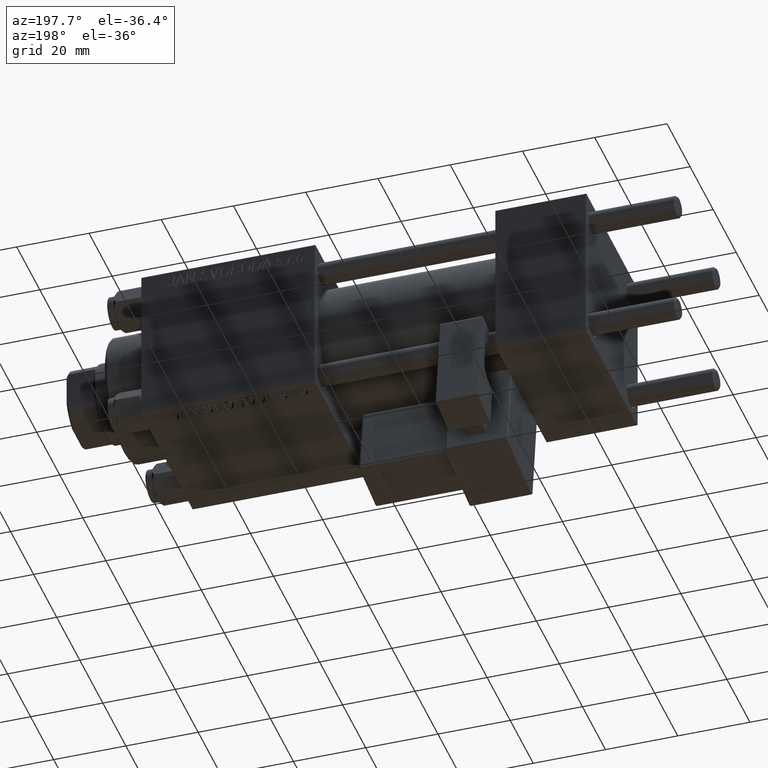
[diagram: clean part render]
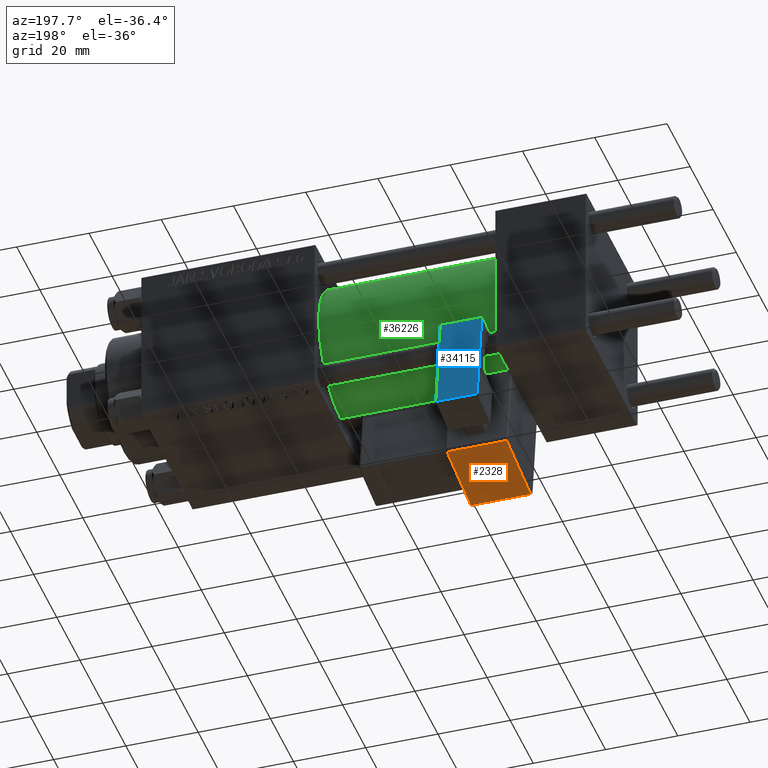
[diagram: same view with three faces highlighted in distinct colors, each labeled with its STEP entity id]
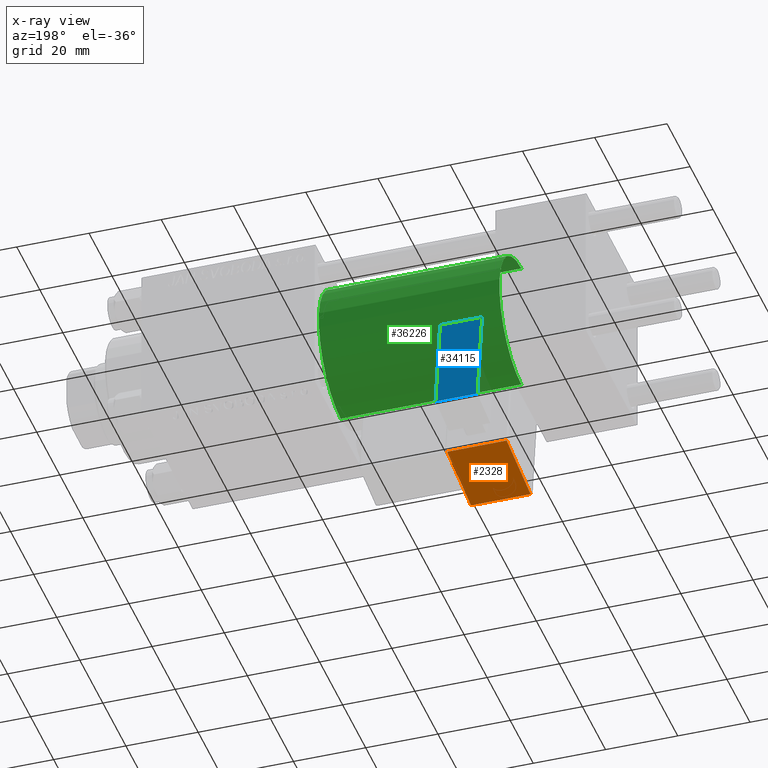
[diagram: x-ray of the same camera — body ghosted, the three highlighted faces saturated]
A machine part, auxiliary view with three faces highlighted in distinct colors.
The next image is the same camera in x-ray (body ghosted, the three faces saturated) — at least one of them is partly hidden behind the body in this view.
Their STEP definitions:

[orange] entity #2328 — the highlighted planar face has unit normal (-0, -0.1399, 0.9902).
#510 = VERTEX_POINT ( 'NONE', #13471 ) ;
#694 = FACE_OUTER_BOUND ( 'NONE', #46656, .T. ) ;
#2328 = ADVANCED_FACE ( 'NONE', ( #694 ), #8884, .F. ) ;
#4853 = LINE ( 'NONE', #48739, #40131 ) ;
#6580 = CARTESIAN_POINT ( 'NONE',  ( -8.250000000000003553, -33.25000000000000000, -1.000000000000000222 ) ) ;
#8884 = PLANE ( 'NONE',  #17933 ) ;
#12184 = EDGE_CURVE ( 'NONE', #27723, #36346, #4853, .T. ) ;
#13124 = EDGE_CURVE ( 'NONE', #510, #27723, #49775, .T. ) ;
#13471 = CARTESIAN_POINT ( 'NONE',  ( 8.250000000000003553, -33.25000000000000000, -1.000000000000000222 ) ) ;
#13809 = CARTESIAN_POINT ( 'NONE',  ( 8.750000000000003553, -33.25000000000000000, -1.000000000000000222 ) ) ;
#17933 = AXIS2_PLACEMENT_3D ( 'NONE', #24993, #41117, #21013 ) ;
#18111 = ORIENTED_EDGE ( 'NONE', *, *, #44123, .T. ) ;
#19217 = DIRECTION ( 'NONE',  ( 1.000000000000000000, -0.000000000000000000, 0.000000000000000000 ) ) ;
#19741 = VERTEX_POINT ( 'NONE', #25380 ) ;
#20883 = VECTOR ( 'NONE', #19217, 1000.000000000000000 ) ;
#21013 = DIRECTION ( 'NONE',  ( 1.000000000000000000, 0.000000000000000000, -0.000000000000000000 ) ) ;
#22666 = LINE ( 'NONE', #23185, #20883 ) ;
#23185 = CARTESIAN_POINT ( 'NONE',  ( 8.750000000000003553, -12.25000000000000000, -1.000000000000000222 ) ) ;
#24993 = CARTESIAN_POINT ( 'NONE',  ( 8.750000000000003553, -33.75000000000000000, -1.000000000000000222 ) ) ;
#25380 = CARTESIAN_POINT ( 'NONE',  ( 8.250000000000003553, -12.25000000000000000, -1.000000000000000222 ) ) ;
#27166 = LINE ( 'NONE', #43293, #45371 ) ;
#27723 = VERTEX_POINT ( 'NONE', #6580 ) ;
#29221 = VECTOR ( 'NONE', #41822, 1000.000000000000000 ) ;
#31381 = CARTESIAN_POINT ( 'NONE',  ( -8.250000000000003553, -12.25000000000000000, -1.000000000000000222 ) ) ;
#36146 = ORIENTED_EDGE ( 'NONE', *, *, #44174, .T. ) ;
#36346 = VERTEX_POINT ( 'NONE', #31381 ) ;
#38800 = DIRECTION ( 'NONE',  ( -0.000000000000000000, -1.000000000000000000, -0.000000000000000000 ) ) ;
#40131 = VECTOR ( 'NONE', #49515, 1000.000000000000000 ) ;
#40604 = ORIENTED_EDGE ( 'NONE', *, *, #12184, .T. ) ;
#41117 = DIRECTION ( 'NONE',  ( 0.000000000000000000, 0.000000000000000000, 1.000000000000000000 ) ) ;
#41822 = DIRECTION ( 'NONE',  ( -1.000000000000000000, -0.000000000000000000, 0.000000000000000000 ) ) ;
#43293 = CARTESIAN_POINT ( 'NONE',  ( 8.250000000000003553, -33.75000000000000000, -1.000000000000000222 ) ) ;
#44123 = EDGE_CURVE ( 'NONE', #19741, #510, #27166, .T. ) ;
#44174 = EDGE_CURVE ( 'NONE', #36346, #19741, #22666, .T. ) ;
#45371 = VECTOR ( 'NONE', #38800, 1000.000000000000000 ) ;
#46656 = EDGE_LOOP ( 'NONE', ( #36146, #18111, #50192, #40604 ) ) ;
#48739 = CARTESIAN_POINT ( 'NONE',  ( -8.250000000000003553, -33.75000000000000000, -1.000000000000000222 ) ) ;
#49515 = DIRECTION ( 'NONE',  ( -0.000000000000000000, 1.000000000000000000, 0.000000000000000000 ) ) ;
#49775 = LINE ( 'NONE', #13809, #29221 ) ;
#50192 = ORIENTED_EDGE ( 'NONE', *, *, #13124, .T. ) ;

[blue] entity #34115 — the highlighted planar face has unit normal (0, -0.9902, -0.1399).
#200 = CARTESIAN_POINT ( 'NONE',  ( -5.750000000000000000, 5.750000000000000000, 0.000000000000000000 ) ) ;
#1840 = ORIENTED_EDGE ( 'NONE', *, *, #11110, .F. ) ;
#4706 = VERTEX_POINT ( 'NONE', #16070 ) ;
#4823 = DIRECTION ( 'NONE',  ( -0.000000000000000000, -0.000000000000000000, -1.000000000000000000 ) ) ;
#5841 = PLANE ( 'NONE',  #41740 ) ;
#6441 = LINE ( 'NONE', #43157, #47946 ) ;
#6587 = LINE ( 'NONE', #22669, #31455 ) ;
#9681 = EDGE_LOOP ( 'NONE', ( #1840, #16012, #18991, #38426 ) ) ;
#9719 = VERTEX_POINT ( 'NONE', #34868 ) ;
#10171 = CARTESIAN_POINT ( 'NONE',  ( -5.750000000000000000, 5.750000000000000000, 28.00000000000000000 ) ) ;
#11110 = EDGE_CURVE ( 'NONE', #11970, #4706, #37039, .T. ) ;
#11970 = VERTEX_POINT ( 'NONE', #10171 ) ;
#16012 = ORIENTED_EDGE ( 'NONE', *, *, #41716, .T. ) ;
#16070 = CARTESIAN_POINT ( 'NONE',  ( -5.750000000000000000, 5.750000000000000000, 0.000000000000000000 ) ) ;
#18488 = DIRECTION ( 'NONE',  ( 1.000000000000000000, 1.508455196501571183E-16, 0.000000000000000000 ) ) ;
#18991 = ORIENTED_EDGE ( 'NONE', *, *, #29525, .T. ) ;
#22180 = CARTESIAN_POINT ( 'NONE',  ( -5.750000000000000000, 5.750000000000000000, 12.00000000000000000 ) ) ;
#22669 = CARTESIAN_POINT ( 'NONE',  ( 5.750000000000000000, 5.750000000000001776, 12.00000000000000000 ) ) ;
#23968 = LINE ( 'NONE', #200, #34543 ) ;
#26428 = DIRECTION ( 'NONE',  ( 1.508455196501571183E-16, -1.000000000000000000, 0.000000000000000000 ) ) ;
#29525 = EDGE_CURVE ( 'NONE', #32782, #9719, #6587, .T. ) ;
#31455 = VECTOR ( 'NONE', #51254, 1000.000000000000000 ) ;
#32511 = VECTOR ( 'NONE', #4823, 1000.000000000000000 ) ;
#32782 = VERTEX_POINT ( 'NONE', #50727 ) ;
#34115 = ADVANCED_FACE ( 'NONE', ( #47066 ), #5841, .F. ) ;
#34431 = DIRECTION ( 'NONE',  ( 1.000000000000000000, 1.508455196501571183E-16, -0.000000000000000000 ) ) ;
#34543 = VECTOR ( 'NONE', #52278, 1000.000000000000000 ) ;
#34868 = CARTESIAN_POINT ( 'NONE',  ( 5.750000000000000000, 5.750000000000001776, 0.000000000000000000 ) ) ;
#37039 = LINE ( 'NONE', #44473, #32511 ) ;
#38426 = ORIENTED_EDGE ( 'NONE', *, *, #48006, .T. ) ;
#41716 = EDGE_CURVE ( 'NONE', #11970, #32782, #6441, .T. ) ;
#41740 = AXIS2_PLACEMENT_3D ( 'NONE', #22180, #26428, #18488 ) ;
#43157 = CARTESIAN_POINT ( 'NONE',  ( -5.750000000000000000, 5.750000000000000000, 28.00000000000000000 ) ) ;
#44473 = CARTESIAN_POINT ( 'NONE',  ( -5.750000000000000000, 5.750000000000000000, 12.00000000000000000 ) ) ;
#47066 = FACE_OUTER_BOUND ( 'NONE', #9681, .T. ) ;
#47946 = VECTOR ( 'NONE', #34431, 1000.000000000000000 ) ;
#48006 = EDGE_CURVE ( 'NONE', #9719, #4706, #23968, .T. ) ;
#50727 = CARTESIAN_POINT ( 'NONE',  ( 5.750000000000000000, 5.750000000000001776, 28.00000000000000000 ) ) ;
#51254 = DIRECTION ( 'NONE',  ( -0.000000000000000000, -0.000000000000000000, -1.000000000000000000 ) ) ;
#52278 = DIRECTION ( 'NONE',  ( -1.000000000000000000, -1.508455196501571429E-16, -0.000000000000000000 ) ) ;

[green] entity #36226 — the highlighted cylindrical surface (partial cylindrical patch) has radius 19 mm, axis along (-1, -0, -0).
#156 = CARTESIAN_POINT ( 'NONE',  ( 75.00000000000001421, 2.326828918379970970E-15, -19.00000000000000000 ) ) ;
#1076 = EDGE_CURVE ( 'NONE', #24282, #11934, #30410, .T. ) ;
#1787 = CARTESIAN_POINT ( 'NONE',  ( 25.00000000000000000, 0.000000000000000000, 0.000000000000000000 ) ) ;
#2767 = CARTESIAN_POINT ( 'NONE',  ( 25.00000000000000000, 2.326828918379970970E-15, -19.00000000000000000 ) ) ;
#2871 = CARTESIAN_POINT ( 'NONE',  ( 75.00000000000001421, 0.000000000000000000, 0.000000000000000000 ) ) ;
#3041 = CARTESIAN_POINT ( 'NONE',  ( 75.00000000000001421, 0.000000000000000000, 0.000000000000000000 ) ) ;
#7448 = CIRCLE ( 'NONE', #25990, 19.00000000000000000 ) ;
#11934 = VERTEX_POINT ( 'NONE', #42927 ) ;
#12031 = VECTOR ( 'NONE', #19033, 1000.000000000000000 ) ;
#12424 = EDGE_CURVE ( 'NONE', #19106, #11934, #21543, .T. ) ;
#16582 = ORIENTED_EDGE ( 'NONE', *, *, #12424, .T. ) ;
#17273 = VERTEX_POINT ( 'NONE', #35456 ) ;
#18323 = ORIENTED_EDGE ( 'NONE', *, *, #24165, .T. ) ;
#19033 = DIRECTION ( 'NONE',  ( -1.000000000000000000, -0.000000000000000000, -0.000000000000000000 ) ) ;
#19106 = VERTEX_POINT ( 'NONE', #2767 ) ;
#19131 = DIRECTION ( 'NONE',  ( 1.000000000000000000, 0.000000000000000000, 0.000000000000000000 ) ) ;
#21543 = CIRCLE ( 'NONE', #43524, 19.00000000000000000 ) ;
#24165 = EDGE_CURVE ( 'NONE', #17273, #19106, #24193, .T. ) ;
#24193 = LINE ( 'NONE', #156, #32124 ) ;
#24282 = VERTEX_POINT ( 'NONE', #28939 ) ;
#25990 = AXIS2_PLACEMENT_3D ( 'NONE', #3041, #19131, #32078 ) ;
#26454 = CARTESIAN_POINT ( 'NONE',  ( 75.00000000000001421, 0.000000000000000000, 19.00000000000000000 ) ) ;
#27467 = AXIS2_PLACEMENT_3D ( 'NONE', #2871, #47287, #43295 ) ;
#28939 = CARTESIAN_POINT ( 'NONE',  ( 75.00000000000001421, 0.000000000000000000, 19.00000000000000000 ) ) ;
#30410 = LINE ( 'NONE', #26454, #12031 ) ;
#31573 = ORIENTED_EDGE ( 'NONE', *, *, #1076, .F. ) ;
#32078 = DIRECTION ( 'NONE',  ( 0.000000000000000000, 0.000000000000000000, -1.000000000000000000 ) ) ;
#32124 = VECTOR ( 'NONE', #47745, 1000.000000000000000 ) ;
#33750 = DIRECTION ( 'NONE',  ( 0.000000000000000000, 0.000000000000000000, 1.000000000000000000 ) ) ;
#35456 = CARTESIAN_POINT ( 'NONE',  ( 75.00000000000001421, 2.326828918379970970E-15, -19.00000000000000000 ) ) ;
#36226 = ADVANCED_FACE ( 'NONE', ( #43037 ), #39054, .T. ) ;
#39054 = CYLINDRICAL_SURFACE ( 'NONE', #27467, 19.00000000000000000 ) ;
#42240 = EDGE_CURVE ( 'NONE', #17273, #24282, #7448, .T. ) ;
#42927 = CARTESIAN_POINT ( 'NONE',  ( 25.00000000000000000, 0.000000000000000000, 19.00000000000000000 ) ) ;
#43037 = FACE_OUTER_BOUND ( 'NONE', #50094, .T. ) ;
#43295 = DIRECTION ( 'NONE',  ( 0.000000000000000000, 0.000000000000000000, 1.000000000000000000 ) ) ;
#43524 = AXIS2_PLACEMENT_3D ( 'NONE', #1787, #45931, #33750 ) ;
#45931 = DIRECTION ( 'NONE',  ( 1.000000000000000000, -0.000000000000000000, 0.000000000000000000 ) ) ;
#47287 = DIRECTION ( 'NONE',  ( -1.000000000000000000, -0.000000000000000000, -0.000000000000000000 ) ) ;
#47745 = DIRECTION ( 'NONE',  ( -1.000000000000000000, -0.000000000000000000, -0.000000000000000000 ) ) ;
#49079 = ORIENTED_EDGE ( 'NONE', *, *, #42240, .F. ) ;
#50094 = EDGE_LOOP ( 'NONE', ( #49079, #18323, #16582, #31573 ) ) ;